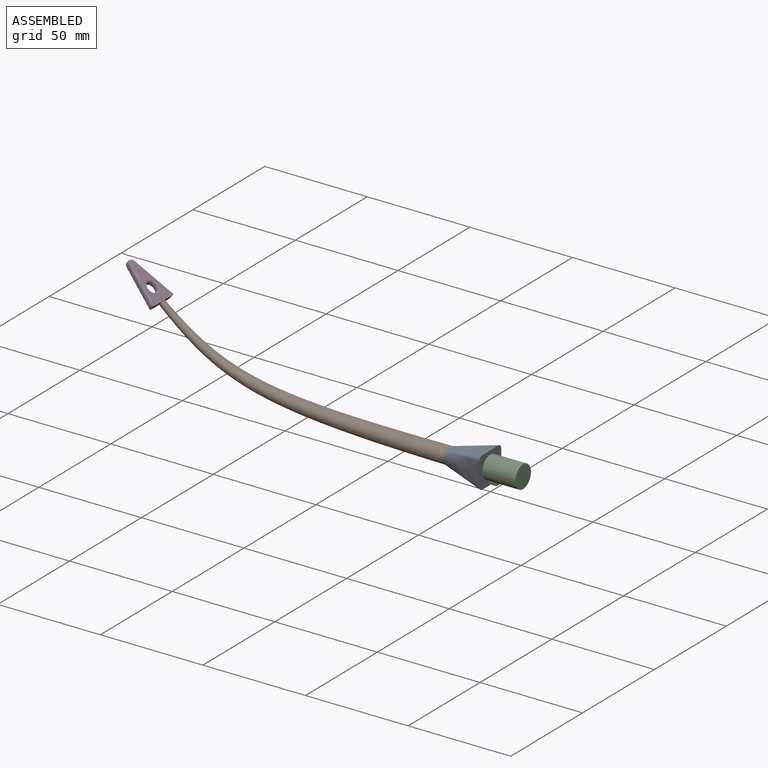
[diagram: assembled view]
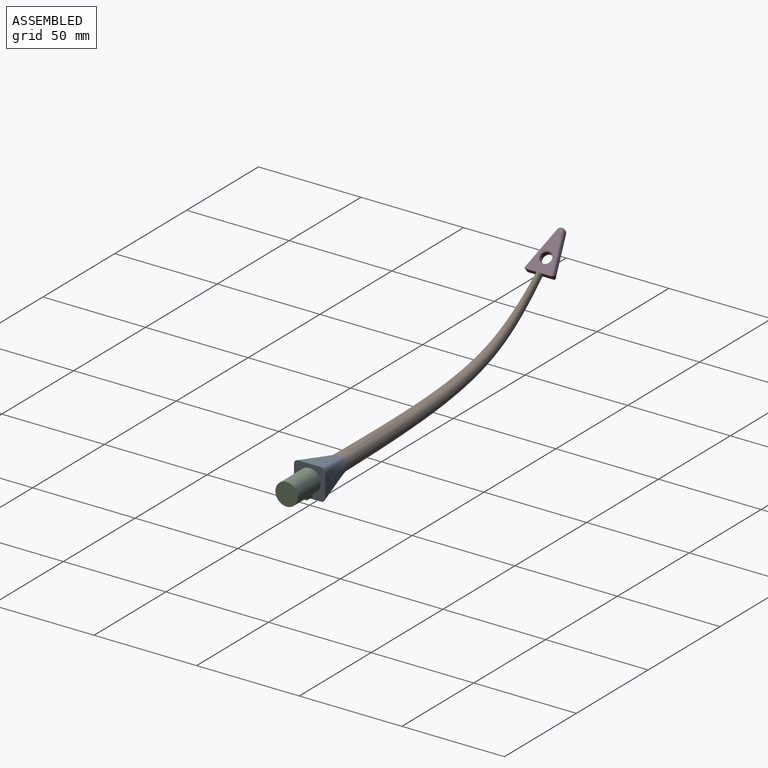
[diagram: assembled view, second angle]
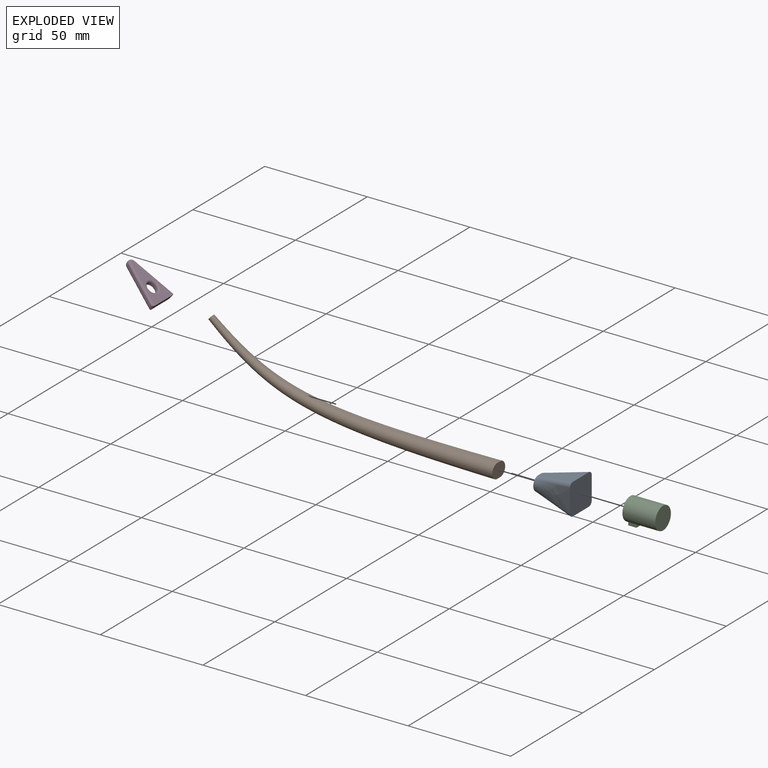
[diagram: exploded view]
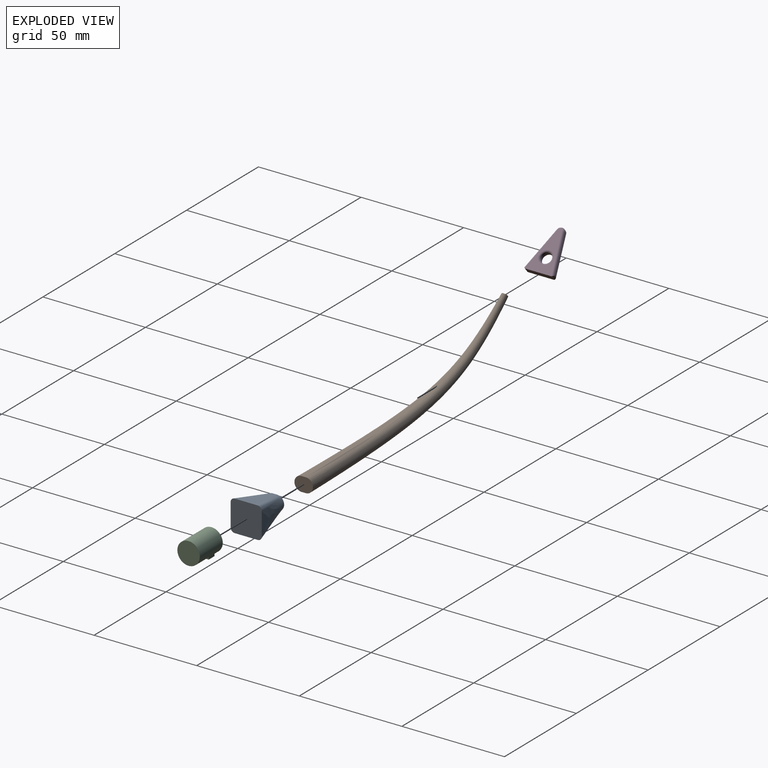
[diagram: exploded view, second angle]
FCSTD DOCUMENT  (FreeCAD 1.0R39109 (Git))
Label: abu
License: All rights reserved
LicenseURL: http://en.wikipedia.org/wiki/All_rights_reserved
objects: Sketcher::SketchObject×8, PartDesign::Body×4, App::Link×4, App::FeaturePython×4, PartDesign::Pad×3, PartDesign::AdditivePipe×1, PartDesign::Fillet×1, PartDesign::AdditiveLoft×1, Assembly::JointGroup×1, Assembly::AssemblyObject×1
note: 38 computed .brp shape members not serialized (recipe doc carries the construction recipe); baked Part::Feature solids carry a one-line shape summary decoded from their .brp

FEATURE [Sketcher::SketchObject] Sketch  label="Profile"
  ArcFitTolerance = 1e-06
  AttachmentSupport = -> [YZ_Plane002]
  FullyConstrained = false
  MakeInternals = false
  MapMode = 5
  Placement = pos=(0,0,0) rot=(0.57735,0.57735,0.57735;2.0944rad)
  sketch-geometry (11):
    g0: LineSegment [constr] StartX=0 StartY=0 StartZ=0 EndX=140 EndY=0 EndZ=0
    g1: LineSegment [constr] StartX=140 StartY=0 StartZ=0 EndX=140 EndY=30 EndZ=0
    g2: LineSegment [constr] StartX=140 StartY=30 StartZ=0 EndX=0 EndY=30 EndZ=0
    g3: LineSegment [constr] StartX=0 StartY=30 StartZ=0 EndX=0 EndY=0 EndZ=0
    g4-g7: Circle [constr] x4 (B-spline internal-alignment scaffolding for g8; pole/knot coordinates omitted)
    g8: BSplineCurve PolesCount=4 KnotsCount=2 Degree=3 IsPeriodic=0
    g9: GeomPoint [constr] X=0 Y=0 Z=0
    g10: GeomPoint [constr] X=140 Y=30 Z=0
  constraints (21):
    c: Coincident(g0,g1)
    c: Coincident(g1,g2)
    c: Coincident(g2,g3)
    c: Coincident(g3,g0)
    c: Horizontal(g0)
    c: Horizontal(g2)
    c: Vertical(g1)
    c: Vertical(g3)
    c: Coincident(g0,g-1)
    c: DistanceX(g2,g2) = 140
    c: DistanceY(g1,g1) = 30
    c: Weight(g4) = 1
    c: Equal(g4,g5)
    c: Equal(g4,g6)
    c: Equal(g4,g7)
    c: InternalAlignment(g4-g7 -> g8) x4
    c: InternalAlignment(g9,g8)
    c: InternalAlignment(g10,g8)
    c: Coincident(g4,g0)
    c: Coincident(g7,g1)
    c: DistanceY(g5,g8) = 0
FEATURE [Sketcher::SketchObject] Sketch002  label="Start001"
  ArcFitTolerance = 1e-06
  FullyConstrained = true
  MakeInternals = false
  MapMode = 5
  Placement = pos=(0,0,0) rot=(0.57735,0.57735,0.57735;2.0944rad)
  sketch-geometry (8):
    g0: LineSegment StartX=-7.6 StartY=-5.6 StartZ=0 EndX=-7.6 EndY=5.6 EndZ=0
    g1: ArcOfCircle CenterX=-5.6 CenterY=5.6 CenterZ=0 NormalX=0 NormalY=0 NormalZ=1 AngleXU=0 Radius=2 StartAngle=1.5708 EndAngle=3.14159
    g2: LineSegment StartX=-5.6 StartY=7.6 StartZ=0 EndX=5.6 EndY=7.6 EndZ=0
    g3: ArcOfCircle CenterX=5.6 CenterY=5.6 CenterZ=0 NormalX=0 NormalY=0 NormalZ=1 AngleXU=0 Radius=2 StartAngle=2e-16 EndAngle=1.5708
    g4: LineSegment StartX=7.6 StartY=5.6 StartZ=0 EndX=7.6 EndY=-5.6 EndZ=0
    g5: ArcOfCircle CenterX=5.6 CenterY=-5.6 CenterZ=0 NormalX=0 NormalY=0 NormalZ=1 AngleXU=0 Radius=2 StartAngle=4.71239 EndAngle=6.28319
    g6: LineSegment StartX=5.6 StartY=-7.6 StartZ=0 EndX=-5.6 EndY=-7.6 EndZ=0
    g7: ArcOfCircle CenterX=-5.6 CenterY=-5.6 CenterZ=0 NormalX=0 NormalY=0 NormalZ=1 AngleXU=0 Radius=2 StartAngle=3.14159 EndAngle=4.71239
  constraints (19):
    c: Vertical(g0)
    c: Tangent(g0,g1) = 1.5708
    c: Tangent(g1,g2) = 1.5708
    c: Tangent(g2,g3) = 1.5708
    c: Tangent(g3,g4) = 1.5708
    c: Tangent(g4,g5) = 1.5708
    c: Tangent(g5,g6) = 1.5708
    c: Parallel(g2,g-1)
    c: Parallel(g6,g-1)
    c: Parallel(g4,g-2)
    c: Equal(g2,g4)
    c: Equal(g4,g6)
    c: Equal(g6,g0)
    c: Equal(g1,g3)
    c: Tangent(g7,g6) = 1.5708
    c: Tangent(g7,g0) = 1.5708
    c: Radius(g1) = 2
    c: DistanceX(g0,g3) = 15.2
    c: Symmetric(g3,g7,g-1)
FEATURE [Sketcher::SketchObject] Sketch003  label="Start"
  ArcFitTolerance = 1e-06
  AttachmentSupport = -> [Sketch]
  FullyConstrained = true
  MakeInternals = false
  MapMode = 8
  Placement = pos=(0,0,0) rot=(0.57735,0.57735,-0.57735;2.0944rad)
  sketch-geometry (4):
    g0: ArcOfCircle CenterX=1e-16 CenterY=-1 CenterZ=0 NormalX=0 NormalY=0 NormalZ=1 AngleXU=0 Radius=3.5 StartAngle=3.14159 EndAngle=6.28319
    g1: ArcOfCircle CenterX=-1e-16 CenterY=1 CenterZ=0 NormalX=0 NormalY=0 NormalZ=1 AngleXU=0 Radius=3.5 StartAngle=-2.7e-15 EndAngle=3.14159
    g2: LineSegment StartX=-3.5 StartY=-1 StartZ=0 EndX=-3.5 EndY=1 EndZ=0
    g3: LineSegment StartX=3.5 StartY=-1 StartZ=0 EndX=3.5 EndY=1 EndZ=0
  constraints (9):
    c: Tangent(g0,g2) = 1.5708
    c: Tangent(g0,g3) = -1.5708
    c: Tangent(g1,g2) = 1.5708
    c: Tangent(g1,g3) = -1.5708
    c: Equal(g0,g1)
    c: Vertical(g3)
    c: DistanceX(g1,g1) = 7
    c: DistanceY(g2,g2) = 2
    c: Symmetric(g1,g0,g-1)
FEATURE [Sketcher::SketchObject] Sketch004  label="End"
  ArcFitTolerance = 1e-06
  AttachmentSupport = -> [Sketch]
  FullyConstrained = true
  MakeInternals = false
  MapMode = 8
  Placement = pos=(0,140,30) rot=(0.671343,0.671343,-0.314003;2.53309rad)
  sketch-geometry (1):
    g0: Circle CenterX=0 CenterY=0 CenterZ=0 NormalX=0 NormalY=0 NormalZ=1 AngleXU=0 Radius=1.5
  constraints (2):
    c: Coincident(g0,g-1)
    c: Diameter(g0) = 3
FEATURE [PartDesign::AdditivePipe] AdditivePipe
  AuxilleryCurvelinear = true
  AuxillerySpineTangent = false
  Binormal = (0,0,0)
  Mode = 0
  Placement = pos=(0,0,0) rot=(0.57735,0.57735,0.57735;2.0944rad)
  Profile = -> Sketch003 [?Edge1]
  Refine = true
  Sections = -> [Sketch004]
  Spine = -> Sketch
  SpineTangent = false
  Suppressed = false
  Transformation = 1
  Transition = 0
FEATURE [PartDesign::Body] Body001  label="Rod"
  AllowCompound = false
  Group = -> [Sketch,Sketch003,Sketch004,AdditivePipe]
  Origin = -> Origin002
  Tip = -> AdditivePipe
FEATURE [Sketcher::SketchObject] Sketch005  label="End001"
  ArcFitTolerance = 1e-06
  FullyConstrained = true
  MakeInternals = false
  MapMode = 5
  Placement = pos=(20,0,0) rot=(-0.57735,0.57735,0.57735;4.18879rad)
  sketch-geometry (4):
    g0: ArcOfCircle CenterX=-1 CenterY=2e-16 CenterZ=0 NormalX=0 NormalY=0 NormalZ=1 AngleXU=0 Radius=3.5 StartAngle=1.5708 EndAngle=4.71239
    g1: ArcOfCircle CenterX=1 CenterY=-2e-16 CenterZ=0 NormalX=0 NormalY=0 NormalZ=1 AngleXU=0 Radius=3.5 StartAngle=4.71239 EndAngle=7.85398
    g2: LineSegment StartX=-1 StartY=3.5 StartZ=0 EndX=1 EndY=3.5 EndZ=0
    g3: LineSegment StartX=-1 StartY=-3.5 StartZ=0 EndX=1 EndY=-3.5 EndZ=0
  constraints (9):
    c: Tangent(g0,g2) = 1.5708
    c: Tangent(g0,g3) = -1.5708
    c: Tangent(g1,g2) = 1.5708
    c: Tangent(g1,g3) = -1.5708
    c: Equal(g0,g1)
    c: Horizontal(g3)
    c: DistanceX(g2,g2) = 2
    c: DistanceY(g0,g0) = 7
    c: Symmetric(g1,g0,g-1)
FEATURE [Sketcher::SketchObject] Sketch006  label="Cylinder"
  ArcFitTolerance = 1e-06
  AttachmentSupport = -> [YZ_Plane004]
  FullyConstrained = true
  MakeInternals = false
  MapMode = 5
  Placement = pos=(0,0,0) rot=(0.57735,0.57735,0.57735;2.0944rad)
  sketch-geometry (1):
    g0: Circle CenterX=0 CenterY=0 CenterZ=0 NormalX=0 NormalY=0 NormalZ=1 AngleXU=0 Radius=5.45
  constraints (2):
    c: Coincident(g0,g-1)
    c: Diameter(g0) = 10.9
FEATURE [PartDesign::Pad] Pad001
  Direction = (1,0,0)
  Length = 16
  Length2 = 10
  Placement = pos=(0,0,0) rot=(1,1,1;2.0944rad)
  Profile = -> Sketch006
  ReferenceAxis = -> Sketch006 [N_Axis]
  Refine = true
  Suppressed = false
  Type = 0
FEATURE [Sketcher::SketchObject] Sketch007
  ArcFitTolerance = 1e-06
  AttachmentSupport = -> [YZ_Plane004]
  FullyConstrained = true
  MakeInternals = false
  MapMode = 5
  Placement = pos=(0,0,0) rot=(0.57735,0.57735,0.57735;2.0944rad)
  sketch-geometry (5):
    g0: LineSegment StartX=-1.4 StartY=0 StartZ=0 EndX=1.4 EndY=0 EndZ=0
    g1: LineSegment StartX=1.4 StartY=0 StartZ=0 EndX=1.4 EndY=-6.95 EndZ=0
    g2: LineSegment StartX=1.4 StartY=-6.95 StartZ=0 EndX=-1.4 EndY=-6.95 EndZ=0
    g3: LineSegment StartX=-1.4 StartY=-6.95 StartZ=0 EndX=-1.4 EndY=0 EndZ=0
    g4: LineSegment [constr] StartX=0 StartY=0 StartZ=0 EndX=0 EndY=-5.45 EndZ=0
  constraints (13):
    c: Coincident(g0,g1)
    c: Coincident(g1,g2)
    c: Coincident(g2,g3)
    c: Coincident(g3,g0)
    c: Horizontal(g0)
    c: Vertical(g1)
    c: DistanceX(g2,g2) = 2.8
    c: Symmetric(g2,g1,g-2)
    c: Coincident(g4,g-1)
    c: PointOnObject(g4,g-2)
    c: DistanceY(g4,g4) = 5.45
    c: DistanceY(g1,g4) = 1.5
    c: Symmetric(g0,g0,g4)
FEATURE [PartDesign::Pad] Pad002  label="Rotation Lock"
  BaseFeature = -> Pad001
  Direction = (1,0,0)
  Length = 4
  Length2 = 10
  Placement = pos=(0,0,0) rot=(1,1,1;2.0944rad)
  Profile = -> Sketch007
  ReferenceAxis = -> Sketch007 [N_Axis]
  Refine = true
  Suppressed = false
  Type = 0
FEATURE [PartDesign::Body] Body003  label="Shaft"
  AllowCompound = false
  Group = -> [Sketch006,Pad001,Sketch007,Pad002]
  Origin = -> Origin004
  Tip = -> Pad002
FEATURE [App::Link] Shaft  label="Shaft001"
  LinkPlacement = pos=(4.95325e-10,3e-16,-20.3005) rot=(3e-06,0,1;0rad)
  LinkedObject = -> Body003
  Placement = pos=(4.95325e-10,3e-16,-20.3005) rot=(3e-06,0,1;0rad)
FEATURE [App::Link] Connector  label="Connector001"
  LinkPlacement = pos=(4.95325e-10,1.2e-15,-20.5764) rot=(0,1,0;3.14159rad)
  LinkedObject = -> Body002
  Placement = pos=(4.95325e-10,1.2e-15,-20.5764) rot=(0,1,0;3.14159rad)
FEATURE [App::Link] Rod  label="Rod001"
  LinkPlacement = pos=(-20,-5.96046e-07,-20.5764) rot=(0,0,1;1.5708rad)
  LinkedObject = -> Body001
  Placement = pos=(-20,-5.96046e-07,-20.5764) rot=(0,0,1;1.5708rad)
FEATURE [Sketcher::SketchObject] Sketch008
  ArcFitTolerance = 1e-06
  AttachmentSupport = -> [XY_Plane001]
  FullyConstrained = true
  MakeInternals = false
  MapMode = 5
  sketch-geometry (5):
    g0: Circle CenterX=0 CenterY=0 CenterZ=0 NormalX=0 NormalY=0 NormalZ=1 AngleXU=0 Radius=2.5
    g1: LineSegment StartX=-7.5 StartY=-7 StartZ=0 EndX=-1.92659 EndY=13 EndZ=0
    g2: ArcOfCircle CenterX=1.39e-14 CenterY=12.4631 CenterZ=0 NormalX=0 NormalY=0 NormalZ=1 AngleXU=0 Radius=2 StartAngle=0.271775 EndAngle=2.86982
    g3: LineSegment StartX=1.92659 StartY=13 StartZ=0 EndX=7.5 EndY=-7 EndZ=0
    g4: LineSegment StartX=7.5 StartY=-7 StartZ=0 EndX=-7.5 EndY=-7 EndZ=0
  constraints (12):
    c: Coincident(g0,g-1)
    c: Diameter(g0) = 5
    c: Tangent(g1,g2) = 1.5708
    c: Tangent(g2,g3) = 1.5708
    c: Coincident(g3,g4)
    c: Coincident(g4,g1)
    c: Equal(g1,g3)
    c: DistanceY(g3,g0) = 7
    c: Symmetric(g1,g3,g-2)
    c: Radius(g2) = 2
    c: DistanceY(g1,g1) = 20
    c: DistanceX(g1,g3) = 15
FEATURE [PartDesign::Pad] Pad
  Direction = (0,0,1)
  Length = 3
  Length2 = 10
  Profile = -> Sketch008
  ReferenceAxis = -> Sketch008 [N_Axis]
  Refine = true
  Suppressed = false
  Type = 0
FEATURE [PartDesign::Fillet] Fillet
  Base = -> Pad [Edge15,Face3,Edge5,Face1,Face2,Edge14]
  BaseFeature = -> Pad
  Radius = 1
  Refine = true
  SupportTransform = false
  Suppressed = false
  UseAllEdges = false
FEATURE [PartDesign::Body] Body  label="Tip"
  AllowCompound = false
  Group = -> [Sketch008,Pad,Fillet]
  Origin = -> Origin001
  Tip = -> Fillet
FEATURE [App::Link] Tip  label="Tip001"
  LinkPlacement = pos=(-166.334,-4.95713e-06,12.7593) rot=(0.32269,0.32269,0.889799;1.68729rad)
  LinkedObject = -> Body
  Placement = pos=(-166.334,-4.95713e-06,12.7593) rot=(0.32269,0.32269,0.889799;1.68729rad)
FEATURE [PartDesign::AdditiveLoft] AdditiveLoft
  Closed = false
  Placement = pos=(0,0,0) rot=(0.57735,0.57735,0.57735;2.0944rad)
  Profile = -> Sketch002
  Refine = true
  Ruled = false
  Sections = -> [Sketch005]
  Suppressed = false
FEATURE [PartDesign::Body] Body002  label="Connector"
  AllowCompound = false
  Group = -> [Sketch002,Sketch005,AdditiveLoft]
  Origin = -> Origin003
  Tip = -> AdditiveLoft
FEATURE [App::FeaturePython] GroundedJoint  # Assembly grounded joint (typed FeaturePython)
  ObjectToGround = -> Shaft
  Placement = pos=(4.95325e-10,3e-16,-20.3005) rot=(2e-06,0,0.904095;0rad)
FEATURE [App::FeaturePython] Joint  label="Fixed"  # Assembly joint (typed FeaturePython)
  Activated = true
  AngleMax = 0
  AngleMin = 0
  Detach1 = false
  Detach2 = false
  Distance = 0
  Distance2 = 0
  EnableAngleMax = false
  EnableAngleMin = false
  EnableLengthMax = false
  EnableLengthMin = false
  JointType = 0 (Fixed)
  LengthMax = 0
  LengthMin = 0
  Offset2 = pos=(0,0,0) rot=(0,0,1;1.5708rad)
  Placement1 = pos=(-1e-16,-1.97e-14,-0.275941) rot=(0.707107,0,-0.707107;3.14159rad)
  Placement2 = pos=(0,7e-16,0) rot=(0.707107,0,0.707107;3.14159rad)
  Reference1 = -> Assembly [Shaft.Face7,Shaft.Face7]
  Reference2 = -> Assembly [Connector.Face1,Connector.Face1]
FEATURE [App::FeaturePython] Joint001  label="Fixed001"  # Assembly joint (typed FeaturePython)
  Activated = true
  AngleMax = 0
  AngleMin = 0
  Detach1 = false
  Detach2 = false
  Distance = 0
  Distance2 = 0
  EnableAngleMax = false
  EnableAngleMin = false
  EnableLengthMax = false
  EnableLengthMin = false
  JointType = 0 (Fixed)
  LengthMax = 0
  LengthMin = 0
  Offset2 = pos=(0,0,0) rot=(0,0,1;3.14159rad)
  Placement1 = pos=(20,8.3e-15,0) rot=(0.57735,0.57735,0.57735;2.0944rad)
  Placement2 = pos=(-8e-16,0,0) rot=(1,0,0;1.5708rad)
  Reference1 = -> Assembly [Connector.Face3,Connector.Face3]
  Reference2 = -> Assembly [Rod.Face1,Rod.Face1]
FEATURE [App::FeaturePython] Joint002  label="Fixed002"  # Assembly joint (typed FeaturePython)
  Activated = true
  AngleMax = 0
  AngleMin = 0
  Detach1 = false
  Detach2 = false
  Distance = 0
  Distance2 = 0
  EnableAngleMax = false
  EnableAngleMin = false
  EnableLengthMax = false
  EnableLengthMin = false
  JointType = 0 (Fixed)
  LengthMax = 0
  LengthMin = 0
  Offset2 = pos=(0,0,0) rot=(0,0,1;1.5708rad)
  Placement1 = pos=(2.00769e-11,140,30) rot=(0.671343,0.671343,-0.314003;2.53309rad)
  Placement2 = pos=(-3.1232e-12,-7,1.5) rot=(-0.57735,-0.57735,0.57735;4.18879rad)
  Reference1 = -> Assembly [Rod.Face3,Rod.Face3]
  Reference2 = -> Assembly [Tip.Face11,Tip.Face11]
FEATURE [Assembly::JointGroup] Joints
  Group = -> [GroundedJoint,Joint,Joint001,Joint002]
FEATURE [Assembly::AssemblyObject] Assembly
  Group = -> [Joints,Shaft,Connector,Rod,Tip,GroundedJoint,Joint,Joint001,Joint002]
  Origin = -> Origin
  Type = Assembly
